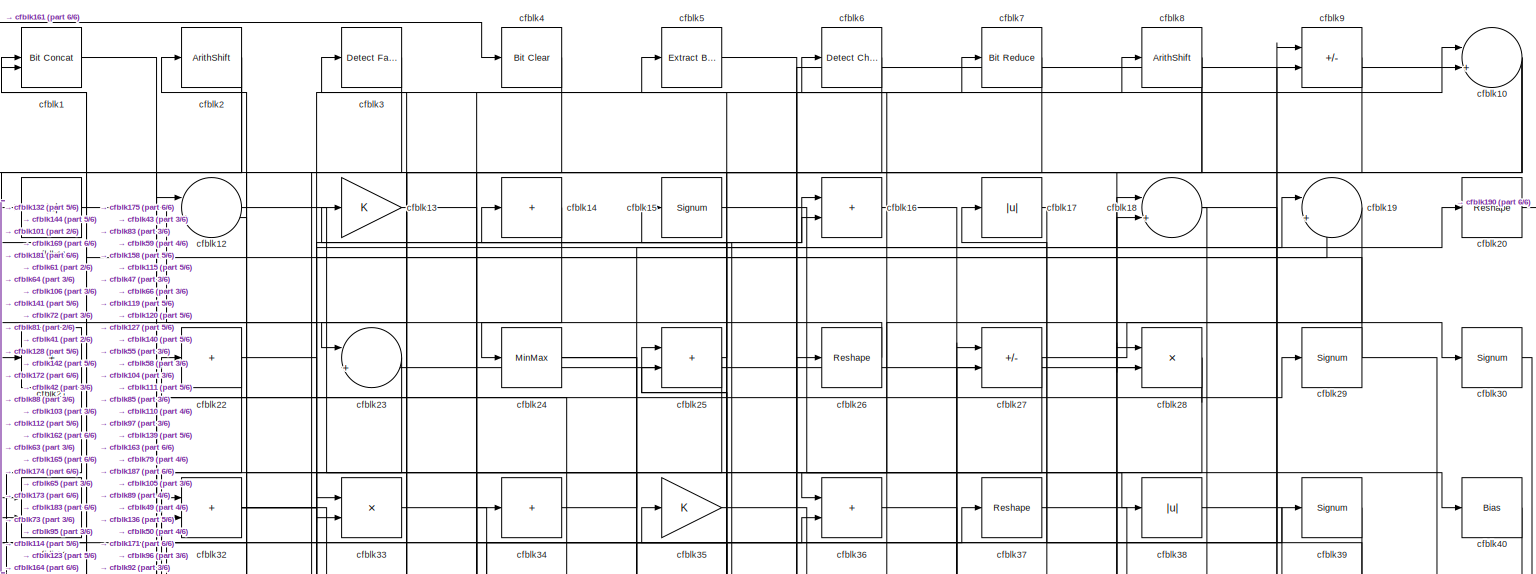
[diagram: root canvas - part 1/6, full width, top band]
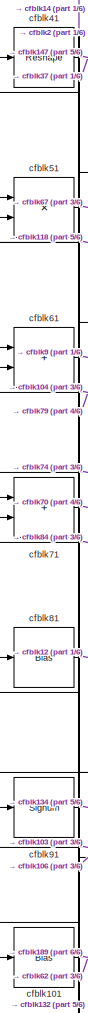
[diagram: root canvas - part 2/6, middle left region]
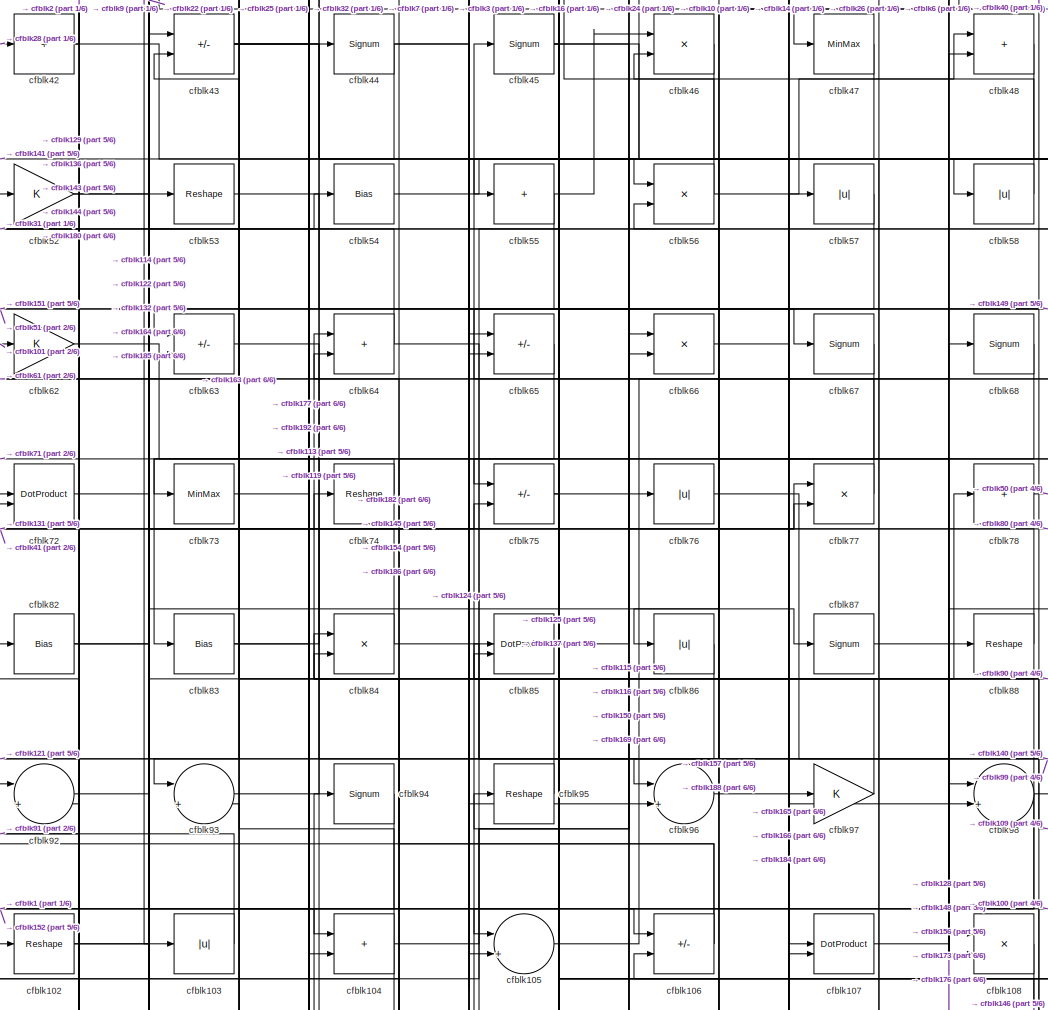
[diagram: root canvas - part 3/6, central region]
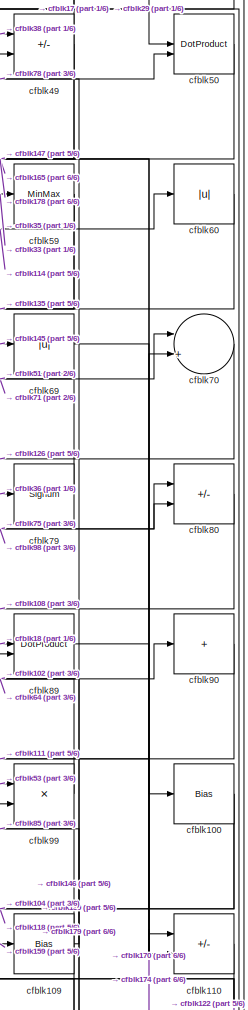
[diagram: root canvas - part 4/6, middle right region]
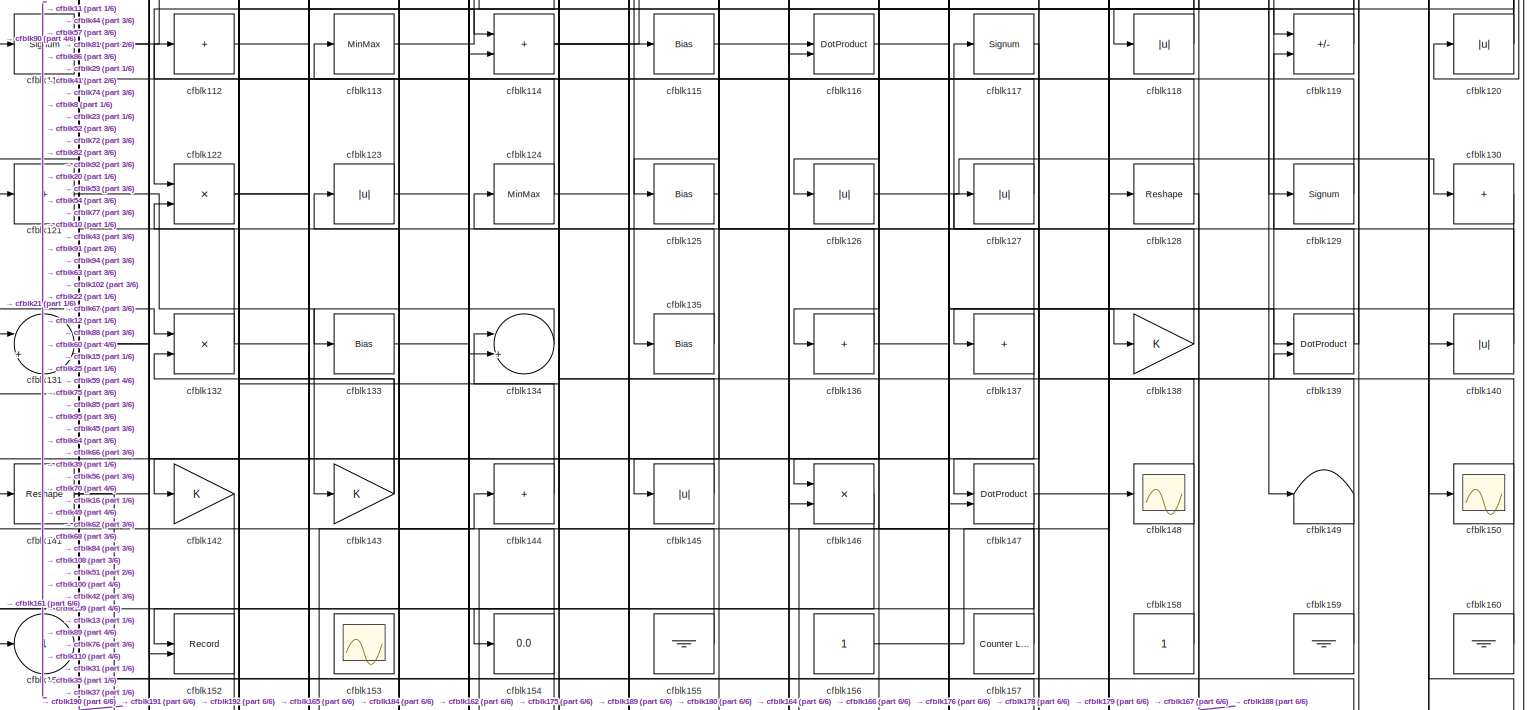
[diagram: root canvas - part 5/6, full width, bottom band]
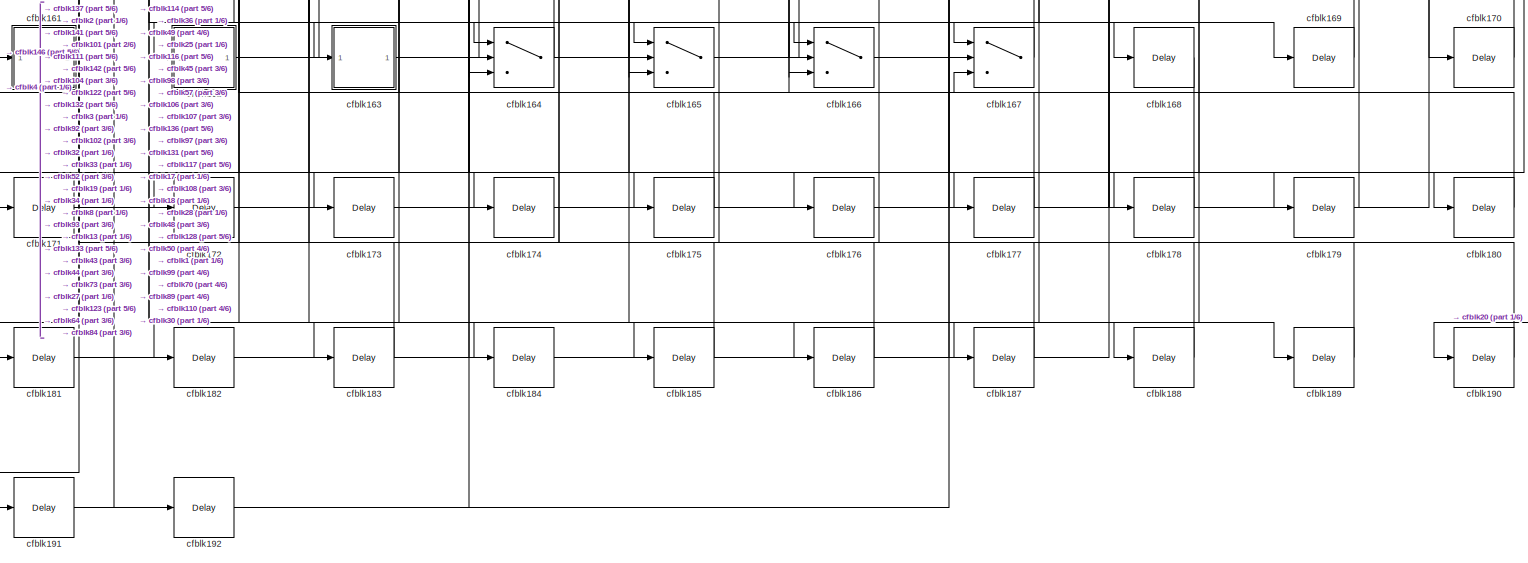
[diagram: root canvas - part 6/6, full width, bottom band]
MODEL slx_dfff746f992a
KIND model
CONFIG AbsTol = auto
CONFIG EnableMultiTasking = off
CONFIG FixedStep = auto
CONFIG MaxStep = auto
CONFIG MinStep = auto
CONFIG RelTol = 1e-3
CONFIG SampleTimeConstraint = Unconstrained
CONFIG SolverName = VariableStepAuto
CONFIG StartTime = 0.0
CONFIG StopTime = 10.0
BLOCK [Reference] cfblk1  REF=hdlsllib/Logic and Bit
Operations/Bit Concat
  SourceBlock = hdlsllib/Logic and Bit\nOperations/Bit Concat
  SourceType = Bit Concat
BLOCK [Sum] cfblk10
  Inputs = |++
BLOCK [Bias] cfblk100
  Bias = 0.0
  SaturateOnIntegerOverflow = off
BLOCK [Bias] cfblk101
  Bias = 0.0
  SaturateOnIntegerOverflow = off
BLOCK [Reshape] cfblk102
BLOCK [Abs] cfblk103
  SaturateOnIntegerOverflow = off
BLOCK [Sum] cfblk104
  IconShape = rectangular
BLOCK [Sum] cfblk105
  Inputs = |++
BLOCK [Sum] cfblk106
  IconShape = rectangular
  Inputs = +-
BLOCK [DotProduct] cfblk107
  OutDataTypeStr = Inherit: Inherit via internal rule
BLOCK [Product] cfblk108
  Inputs = */
  RndMeth = Zero
  SaturateOnIntegerOverflow = on
BLOCK [Bias] cfblk109
  Bias = 0.0
  SaturateOnIntegerOverflow = off
BLOCK [Abs] cfblk11
  SaturateOnIntegerOverflow = off
BLOCK [Sum] cfblk110
  IconShape = rectangular
  Inputs = +-
BLOCK [Signum] cfblk111
BLOCK [Sum] cfblk112
  IconShape = rectangular
  Inputs = +
BLOCK [MinMax] cfblk113
BLOCK [Sum] cfblk114
  IconShape = rectangular
BLOCK [Bias] cfblk115
  Bias = 0.0
  SaturateOnIntegerOverflow = off
BLOCK [DotProduct] cfblk116
  OutDataTypeStr = Inherit: Inherit via internal rule
BLOCK [Signum] cfblk117
BLOCK [Abs] cfblk118
  SaturateOnIntegerOverflow = off
BLOCK [Sum] cfblk119
  IconShape = rectangular
  Inputs = +-
BLOCK [Sum] cfblk12
  Inputs = |++
BLOCK [Abs] cfblk120
  SaturateOnIntegerOverflow = off
BLOCK [Sum] cfblk121
  IconShape = rectangular
  Inputs = +
BLOCK [Product] cfblk122
  Inputs = */
  RndMeth = Zero
  SaturateOnIntegerOverflow = on
BLOCK [Abs] cfblk123
  SaturateOnIntegerOverflow = off
BLOCK [MinMax] cfblk124
BLOCK [Bias] cfblk125
  Bias = 0.0
  SaturateOnIntegerOverflow = off
BLOCK [Abs] cfblk126
  SaturateOnIntegerOverflow = off
BLOCK [Abs] cfblk127
  SaturateOnIntegerOverflow = off
BLOCK [Reshape] cfblk128
BLOCK [Signum] cfblk129
BLOCK [Gain] cfblk13
BLOCK [Sum] cfblk130
  IconShape = rectangular
  Inputs = +
BLOCK [Sum] cfblk131
  Inputs = |++
BLOCK [Product] cfblk132
  Inputs = */
  RndMeth = Zero
  SaturateOnIntegerOverflow = on
BLOCK [Bias] cfblk133
  Bias = 0.0
  SaturateOnIntegerOverflow = off
BLOCK [Sum] cfblk134
  Inputs = |++
BLOCK [Bias] cfblk135
  Bias = 0.0
  SaturateOnIntegerOverflow = off
BLOCK [Sum] cfblk136
  IconShape = rectangular
  Inputs = +
BLOCK [Sum] cfblk137
  IconShape = rectangular
  Inputs = +
BLOCK [Gain] cfblk138
BLOCK [DotProduct] cfblk139
  OutDataTypeStr = Inherit: Inherit via internal rule
BLOCK [Sum] cfblk14
  IconShape = rectangular
  Inputs = +
BLOCK [Abs] cfblk140
  SaturateOnIntegerOverflow = off
BLOCK [Reshape] cfblk141
BLOCK [Gain] cfblk142
BLOCK [Gain] cfblk143
BLOCK [Sum] cfblk144
  IconShape = rectangular
  Inputs = +
BLOCK [Abs] cfblk145
  SaturateOnIntegerOverflow = off
BLOCK [Product] cfblk146
  Inputs = */
  RndMeth = Zero
  SaturateOnIntegerOverflow = on
BLOCK [DotProduct] cfblk147
  OutDataTypeStr = Inherit: Inherit via internal rule
BLOCK [Scope] cfblk148
  Floating = off
  NumInputPorts = 1
  ScopeSpecificationString = Simulink.scopes.TimeScopeBlockCfg('CurrentConfiguration', extmgr.ConfigurationSet(extmgr.Configuration('Core','General UI',true),extmgr.Configuration('Core','Source UI',true),extmgr.Configuration('Sources','WiredSimulink',true,'DataLoggingVariableName','ScopeData2','DataLoggingSaveFormat','Array','DataLoggingLimitDataPoints',true,'DataLoggingDecimation','1'),extmgr.Configuration('Visuals','Time Do...<+868ch>
BLOCK [Terminator] cfblk149
BLOCK [Signum] cfblk15
BLOCK [Scope] cfblk150
  Floating = off
  NumInputPorts = 1
  ScopeSpecificationString = Simulink.scopes.TimeScopeBlockCfg('CurrentConfiguration', extmgr.ConfigurationSet(extmgr.Configuration('Core','General UI',true),extmgr.Configuration('Core','Source UI',true),extmgr.Configuration('Sources','WiredSimulink',true,'DataLoggingVariableName','ScopeData2','DataLoggingSaveFormat','Array','DataLoggingLimitDataPoints',true,'DataLoggingDecimation','1'),extmgr.Configuration('Visuals','Time Do...<+868ch>
BLOCK [Outport] cfblk151
  VectorParamsAs1DForOutWhenUnconnected = off
BLOCK [Record] cfblk152
  CompatibilityTag = XY
  FileSettingsInternal = {"entries":[{"content":{"excelSettings":{"content":{},"type":"Streamout.ExcelSettings"}},"type":"Streamout.FileSettingStorage","uuid":""}],"packageUris":["http:\/\/schema.mathworks.com\/mf0\/streamout_blocks\/R2020a"],"version":"1.0"}
  Layout = [1 1]
  SignalsInternal = {"entries":[{"content":{"signals":[{"content":{"blockPath":[],"dimensions":[1],"domain":"","lineColor":"#a2142f","plots":[1],"port":1,"signalID":2972,"signalName":"XY Graph:1"},"type":"RecordBlkView.Signal","uuid":""},{"content":{"blockPath":[],"dimensions":[1],"domain":"","lineColor":"#139fff","plots":[1],"port":2,"signalID":2975,"signalName":"XY Graph:2"},"type":"RecordBlkView.Signal","uuid":""}...<+146ch>
  VisualizationBindings = {"xyplotplugin":{"info":[{"series":[{"bindingParametersList":[{"parameter":"X-Axis","signalID":2972,"signalName":"XY Graph:1"},{"parameter":"Y-Axis","signalID":2975,"signalName":"XY Graph:2"}],"seriesID":48472}],"subplotID":1}]}}
  st = -1
BLOCK [Scope] cfblk153
  Floating = on
  NumInputPorts = 1
  ScopeSpecificationString = Simulink.scopes.TimeScopeBlockCfg('CurrentConfiguration', extmgr.ConfigurationSet(extmgr.Configuration('Core','General UI',true,'FigureColor',[0.156862745098039 0.156862745098039 0.156862745098039]),extmgr.Configuration('Core','Source UI',true),extmgr.Configuration('Sources','WiredSimulink',true,'DataLoggingVariableName','ScopeData1','DataLoggingSaveFormat','StructureWithTime','DataLoggingLimitDat...<+2713ch>
BLOCK [Display] cfblk154
  Decimation = 1
BLOCK [Ground] cfblk155
BLOCK [Constant] cfblk156
  SampleTime = -1
BLOCK [Reference] cfblk157  REF=hdlsllib/Sources/Counter
Limited
  SourceBlock = hdlsllib/Sources/Counter\nLimited
  SourceType = Counter Limited
BLOCK [Constant] cfblk158
  SampleTime = -1
BLOCK [Ground] cfblk159
BLOCK [Sum] cfblk16
  IconShape = rectangular
BLOCK [Ground] cfblk160
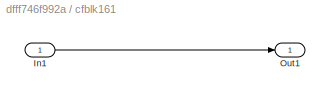
BLOCK [SubSystem] cfblk161
  LibrarySourceBlock = hdlsllib/Ports &\nSubsystems/Subsystem
BLOCK [Inport] cfblk161/In1
BLOCK [Outport] cfblk161/Out1
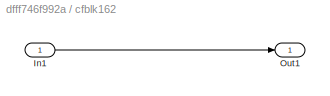
BLOCK [SubSystem] cfblk162
  LibrarySourceBlock = hdlsllib/Ports &\nSubsystems/Subsystem
BLOCK [Inport] cfblk162/In1
BLOCK [Outport] cfblk162/Out1
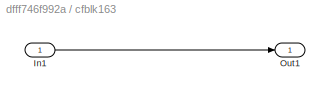
BLOCK [SubSystem] cfblk163
  LibrarySourceBlock = hdlsllib/Ports &\nSubsystems/Subsystem
BLOCK [Inport] cfblk163/In1
BLOCK [Outport] cfblk163/Out1
BLOCK [Switch] cfblk164
  InputSameDT = off
  SaturateOnIntegerOverflow = off
BLOCK [Switch] cfblk165
  InputSameDT = off
  SaturateOnIntegerOverflow = off
BLOCK [Switch] cfblk166
  InputSameDT = off
  SaturateOnIntegerOverflow = off
BLOCK [Switch] cfblk167
  InputSameDT = off
  SaturateOnIntegerOverflow = off
BLOCK [Delay] cfblk168
  InputPortMap = u0
  SampleTime = 1
BLOCK [Delay] cfblk169
  InputPortMap = u0
  SampleTime = 1
BLOCK [Abs] cfblk17
  SaturateOnIntegerOverflow = off
BLOCK [Delay] cfblk170
  InputPortMap = u0
  SampleTime = 1
BLOCK [Delay] cfblk171
  InputPortMap = u0
  SampleTime = 1
BLOCK [Delay] cfblk172
  InputPortMap = u0
  SampleTime = 1
BLOCK [Delay] cfblk173
  InputPortMap = u0
  SampleTime = 1
BLOCK [Delay] cfblk174
  InputPortMap = u0
  SampleTime = 1
BLOCK [Delay] cfblk175
  InputPortMap = u0
  SampleTime = 1
BLOCK [Delay] cfblk176
  InputPortMap = u0
  SampleTime = 1
BLOCK [Delay] cfblk177
  InputPortMap = u0
  SampleTime = 1
BLOCK [Delay] cfblk178
  InputPortMap = u0
  SampleTime = 1
BLOCK [Delay] cfblk179
  InputPortMap = u0
  SampleTime = 1
BLOCK [Sum] cfblk18
  Inputs = |++
BLOCK [Delay] cfblk180
  InputPortMap = u0
  SampleTime = 1
BLOCK [Delay] cfblk181
  InputPortMap = u0
  SampleTime = 1
BLOCK [Delay] cfblk182
  InputPortMap = u0
  SampleTime = 1
BLOCK [Delay] cfblk183
  InputPortMap = u0
  SampleTime = 1
BLOCK [Delay] cfblk184
  InputPortMap = u0
  SampleTime = 1
BLOCK [Delay] cfblk185
  InputPortMap = u0
  SampleTime = 1
BLOCK [Delay] cfblk186
  InputPortMap = u0
  SampleTime = 1
BLOCK [Delay] cfblk187
  InputPortMap = u0
  SampleTime = 1
BLOCK [Delay] cfblk188
  InputPortMap = u0
  SampleTime = 1
BLOCK [Delay] cfblk189
  InputPortMap = u0
  SampleTime = 1
BLOCK [Sum] cfblk19
  Inputs = |++
BLOCK [Delay] cfblk190
  InputPortMap = u0
  SampleTime = 1
BLOCK [Delay] cfblk191
  InputPortMap = u0
  SampleTime = 1
BLOCK [Delay] cfblk192
  InputPortMap = u0
  SampleTime = 1
BLOCK [ArithShift] cfblk2
  BitShiftNumber = 8
  InputPortMap = u0
BLOCK [Reshape] cfblk20
BLOCK [Sum] cfblk21
  IconShape = rectangular
  Inputs = +
BLOCK [Sum] cfblk22
  IconShape = rectangular
  Inputs = +
BLOCK [Sum] cfblk23
  Inputs = |++
BLOCK [MinMax] cfblk24
BLOCK [Sum] cfblk25
  IconShape = rectangular
BLOCK [Reshape] cfblk26
BLOCK [Sum] cfblk27
  IconShape = rectangular
  Inputs = +-
BLOCK [Product] cfblk28
  Inputs = */
  RndMeth = Zero
  SaturateOnIntegerOverflow = on
BLOCK [Signum] cfblk29
BLOCK [Reference] cfblk3  REF=hdlsllib/Logic and Bit
Operations/Detect Fall
Nonpositive
  SourceBlock = hdlsllib/Logic and Bit\nOperations/Detect Fall\nNonpositive
  SourceType = Detect Fall Nonpositive
BLOCK [Signum] cfblk30
BLOCK [Product] cfblk31
  Inputs = */
  RndMeth = Zero
  SaturateOnIntegerOverflow = on
BLOCK [Sum] cfblk32
  IconShape = rectangular
BLOCK [Product] cfblk33
  Inputs = */
  RndMeth = Zero
  SaturateOnIntegerOverflow = on
BLOCK [Sum] cfblk34
  IconShape = rectangular
  Inputs = +
BLOCK [Gain] cfblk35
BLOCK [Sum] cfblk36
  IconShape = rectangular
BLOCK [Reshape] cfblk37
BLOCK [Abs] cfblk38
  SaturateOnIntegerOverflow = off
BLOCK [Signum] cfblk39
BLOCK [Reference] cfblk4  REF=simulink/Logic and Bit
Operations/Bit Clear
  LibrarySourceBlock = hdlsllib/Logic and Bit\nOperations/Bit Clear
  SourceBlock = simulink/Logic and Bit\nOperations/Bit Clear
  SourceType = Bit Clear
BLOCK [Bias] cfblk40
  Bias = 0.0
  SaturateOnIntegerOverflow = off
BLOCK [Reshape] cfblk41
BLOCK [Sum] cfblk42
  IconShape = rectangular
  Inputs = +
BLOCK [Sum] cfblk43
  IconShape = rectangular
  Inputs = +-
BLOCK [Signum] cfblk44
BLOCK [Signum] cfblk45
BLOCK [Product] cfblk46
  Inputs = */
  RndMeth = Zero
  SaturateOnIntegerOverflow = on
BLOCK [MinMax] cfblk47
BLOCK [Sum] cfblk48
  IconShape = rectangular
BLOCK [Sum] cfblk49
  IconShape = rectangular
  Inputs = +-
BLOCK [Reference] cfblk5  REF=simulink/Logic and Bit
Operations/Extract Bits
  LibrarySourceBlock = hdlsllib/Logic and Bit\nOperations/Extract Bits
  SourceBlock = simulink/Logic and Bit\nOperations/Extract Bits
  SourceType = Extract Bits
BLOCK [DotProduct] cfblk50
  OutDataTypeStr = Inherit: Inherit via internal rule
BLOCK [Product] cfblk51
  Inputs = */
  RndMeth = Zero
  SaturateOnIntegerOverflow = on
BLOCK [Gain] cfblk52
BLOCK [Reshape] cfblk53
BLOCK [Bias] cfblk54
  Bias = 0.0
  SaturateOnIntegerOverflow = off
BLOCK [Sum] cfblk55
  IconShape = rectangular
  Inputs = +
BLOCK [Product] cfblk56
  Inputs = */
  RndMeth = Zero
  SaturateOnIntegerOverflow = on
BLOCK [Abs] cfblk57
  SaturateOnIntegerOverflow = off
BLOCK [Abs] cfblk58
  SaturateOnIntegerOverflow = off
BLOCK [MinMax] cfblk59
BLOCK [Reference] cfblk6  REF=simulink/Logic and Bit
Operations/Detect
Change
  LibrarySourceBlock = hdlsllib/Logic and Bit\nOperations/Detect\nChange
  SourceBlock = simulink/Logic and Bit\nOperations/Detect\nChange
  SourceType = Detect Change
BLOCK [Abs] cfblk60
  SaturateOnIntegerOverflow = off
BLOCK [Sum] cfblk61
  IconShape = rectangular
BLOCK [Gain] cfblk62
BLOCK [Sum] cfblk63
  IconShape = rectangular
  Inputs = +-
BLOCK [Sum] cfblk64
  IconShape = rectangular
BLOCK [Sum] cfblk65
  IconShape = rectangular
  Inputs = +-
BLOCK [Product] cfblk66
  Inputs = */
  RndMeth = Zero
  SaturateOnIntegerOverflow = on
BLOCK [Signum] cfblk67
BLOCK [Signum] cfblk68
BLOCK [Abs] cfblk69
  SaturateOnIntegerOverflow = off
BLOCK [Reference] cfblk7  REF=hdlsllib/Logic and Bit
Operations/Bit Reduce
  SourceBlock = hdlsllib/Logic and Bit\nOperations/Bit Reduce
  SourceType = Bit Reduce
BLOCK [Sum] cfblk70
  Inputs = |++
BLOCK [Sum] cfblk71
  IconShape = rectangular
BLOCK [DotProduct] cfblk72
  OutDataTypeStr = Inherit: Inherit via internal rule
BLOCK [MinMax] cfblk73
BLOCK [Reshape] cfblk74
BLOCK [Sum] cfblk75
  IconShape = rectangular
  Inputs = +-
BLOCK [Abs] cfblk76
  SaturateOnIntegerOverflow = off
BLOCK [Product] cfblk77
  Inputs = */
  RndMeth = Zero
  SaturateOnIntegerOverflow = on
BLOCK [Sum] cfblk78
  IconShape = rectangular
  Inputs = +
BLOCK [Signum] cfblk79
BLOCK [ArithShift] cfblk8
  BitShiftNumber = 8
  InputPortMap = u0
BLOCK [Sum] cfblk80
  IconShape = rectangular
  Inputs = +-
BLOCK [Bias] cfblk81
  Bias = 0.0
  SaturateOnIntegerOverflow = off
BLOCK [Bias] cfblk82
  Bias = 0.0
  SaturateOnIntegerOverflow = off
BLOCK [Bias] cfblk83
  Bias = 0.0
  SaturateOnIntegerOverflow = off
BLOCK [Product] cfblk84
  Inputs = */
  RndMeth = Zero
  SaturateOnIntegerOverflow = on
BLOCK [DotProduct] cfblk85
  OutDataTypeStr = Inherit: Inherit via internal rule
BLOCK [Abs] cfblk86
  SaturateOnIntegerOverflow = off
BLOCK [Signum] cfblk87
BLOCK [Reshape] cfblk88
BLOCK [DotProduct] cfblk89
  OutDataTypeStr = Inherit: Inherit via internal rule
BLOCK [Sum] cfblk9
  IconShape = rectangular
  Inputs = +-
BLOCK [Sum] cfblk90
  IconShape = rectangular
  Inputs = +
BLOCK [Signum] cfblk91
BLOCK [Sum] cfblk92
  Inputs = |++
BLOCK [Sum] cfblk93
  Inputs = |++
BLOCK [Signum] cfblk94
BLOCK [Reshape] cfblk95
BLOCK [Sum] cfblk96
  Inputs = |++
BLOCK [Gain] cfblk97
BLOCK [Sum] cfblk98
  Inputs = |++
BLOCK [Product] cfblk99
  Inputs = */
  RndMeth = Zero
  SaturateOnIntegerOverflow = on
NET cfblk100:1 -> cfblk104:2, cfblk118:1
NET cfblk101:1 -> cfblk189:1, cfblk62:1
NET cfblk102:1 -> cfblk185:1, cfblk90:1
LINE cfblk103:1 -> cfblk91:1
NET cfblk104:1 -> cfblk10:2, cfblk182:1, cfblk61:2
LINE cfblk105:1 -> cfblk18:2
NET cfblk106:1 -> cfblk71:2, cfblk84:1
LINE cfblk107:1 -> cfblk98:1
LINE cfblk108:1 -> cfblk146:1
NET cfblk109:1 -> cfblk146:2, cfblk49:2, cfblk85:2
NET cfblk10:1 -> cfblk114:2, cfblk28:2, cfblk55:1
LINE cfblk110:1 -> cfblk122:1
NET cfblk111:1 -> cfblk184:1, cfblk8:1
LINE cfblk112:1 -> cfblk20:1
LINE cfblk113:1 -> cfblk94:1
NET cfblk114:1 -> cfblk166:1, cfblk176:1, cfblk60:1
LINE cfblk115:1 -> cfblk66:1
LINE cfblk116:1 -> cfblk138:1
LINE cfblk117:1 -> cfblk167:1
LINE cfblk118:1 -> cfblk51:1
LINE cfblk119:1 -> cfblk13:1
LINE cfblk11:1 -> cfblk33:2
NET cfblk120:1 -> cfblk31:1, cfblk35:1
LINE cfblk121:1 -> cfblk143:1
NET cfblk122:1 -> cfblk53:1, cfblk77:2
NET cfblk123:1 -> cfblk11:1, cfblk39:1
NET cfblk124:1 -> cfblk113:1, cfblk88:1
LINE cfblk125:1 -> cfblk95:1
LINE cfblk126:1 -> cfblk130:1
LINE cfblk127:1 -> cfblk15:1
NET cfblk128:1 -> cfblk12:2, cfblk188:1
LINE cfblk129:1 -> cfblk72:1
LINE cfblk12:1 -> cfblk115:1
LINE cfblk130:1 -> cfblk137:1
NET cfblk131:1 -> cfblk165:1, cfblk74:1
NET cfblk132:1 -> cfblk54:1, cfblk81:1
LINE cfblk133:1 -> cfblk180:1
LINE cfblk134:1 -> cfblk133:1
LINE cfblk135:1 -> cfblk124:1
NET cfblk136:1 -> cfblk179:1, cfblk82:1
NET cfblk137:1 -> cfblk191:1, cfblk85:1
LINE cfblk138:1 -> cfblk117:1
NET cfblk139:1 -> cfblk119:2, cfblk89:2
LINE cfblk13:1 -> cfblk175:1
LINE cfblk140:1 -> cfblk25:1
NET cfblk141:1 -> cfblk192:1, cfblk29:1
LINE cfblk142:1 -> cfblk162:1
NET cfblk143:1 -> cfblk112:1, cfblk92:1
LINE cfblk144:1 -> cfblk52:1
LINE cfblk145:1 -> cfblk102:1
LINE cfblk146:1 -> cfblk161:1
NET cfblk147:1 -> cfblk139:2, cfblk152:1
LINE cfblk14:1 -> cfblk101:1
LINE cfblk155:1 -> cfblk134:1
LINE cfblk156:1 -> cfblk68:1
LINE cfblk157:1 -> cfblk56:2
LINE cfblk158:1 -> cfblk22:1
LINE cfblk159:1 -> cfblk109:1
LINE cfblk15:1 -> cfblk40:1
LINE cfblk160:1 -> cfblk127:1
LINE cfblk161/In1:1 -> cfblk161/Out1:1
LINE cfblk161:1 -> cfblk4:1
LINE cfblk162/In1:1 -> cfblk162/Out1:1
NET cfblk162:1 -> cfblk19:2, cfblk34:1
LINE cfblk163/In1:1 -> cfblk163/Out1:1
LINE cfblk163:1 -> cfblk27:2
NET cfblk164:1 -> cfblk123:1, cfblk186:1, cfblk36:2
NET cfblk165:1 -> cfblk168:1, cfblk57:1
LINE cfblk166:1 -> cfblk97:1
LINE cfblk167:1 -> cfblk131:2
LINE cfblk168:1 -> cfblk167:3
LINE cfblk169:1 -> cfblk1:2
LINE cfblk16:1 -> cfblk139:1
LINE cfblk170:1 -> cfblk110:1
LINE cfblk171:1 -> cfblk27:1
LINE cfblk172:1 -> cfblk18:1
LINE cfblk173:1 -> cfblk108:1
LINE cfblk174:1 -> cfblk70:2
LINE cfblk175:1 -> cfblk132:2
LINE cfblk176:1 -> cfblk48:2
LINE cfblk177:1 -> cfblk93:2
LINE cfblk178:1 -> cfblk116:1
LINE cfblk179:1 -> cfblk99:2
LINE cfblk17:1 -> cfblk187:1
LINE cfblk180:1 -> cfblk92:2
LINE cfblk181:1 -> cfblk28:1
LINE cfblk182:1 -> cfblk164:2
LINE cfblk183:1 -> cfblk33:1
LINE cfblk184:1 -> cfblk107:2
LINE cfblk185:1 -> cfblk64:2
LINE cfblk186:1 -> cfblk84:2
LINE cfblk187:1 -> cfblk25:2
LINE cfblk188:1 -> cfblk106:2
LINE cfblk189:1 -> cfblk122:2
NET cfblk18:1 -> cfblk58:1, cfblk89:1
LINE cfblk190:1 -> cfblk131:1
LINE cfblk191:1 -> cfblk167:2
LINE cfblk192:1 -> cfblk44:1
LINE cfblk19:1 -> cfblk36:1
LINE cfblk1:1 -> cfblk106:1
LINE cfblk20:1 -> cfblk190:1
LINE cfblk21:1 -> cfblk132:1
NET cfblk22:1 -> cfblk104:1, cfblk72:2
LINE cfblk23:1 -> cfblk142:1
NET cfblk24:1 -> cfblk47:1, cfblk66:2
NET cfblk25:1 -> cfblk5:1, cfblk63:2
LINE cfblk26:1 -> cfblk24:1
NET cfblk27:1 -> cfblk164:3, cfblk30:1
NET cfblk28:1 -> cfblk23:2, cfblk42:1
NET cfblk29:1 -> cfblk1:1, cfblk50:1
NET cfblk2:1 -> cfblk181:1, cfblk32:2, cfblk61:1
LINE cfblk30:1 -> cfblk171:1
LINE cfblk31:1 -> cfblk144:1
NET cfblk32:1 -> cfblk165:3, cfblk16:1, cfblk174:1, cfblk65:1
LINE cfblk33:1 -> cfblk59:1
LINE cfblk34:1 -> cfblk19:1
LINE cfblk35:1 -> cfblk110:2
LINE cfblk36:1 -> cfblk79:1
LINE cfblk37:1 -> cfblk120:1
LINE cfblk38:1 -> cfblk49:1
LINE cfblk39:1 -> cfblk136:1
LINE cfblk3:1 -> cfblk172:1
LINE cfblk40:1 -> cfblk96:1
NET cfblk41:1 -> cfblk147:2, cfblk37:1
NET cfblk42:1 -> cfblk129:1, cfblk2:1
NET cfblk43:1 -> cfblk149:1, cfblk166:2, cfblk16:2, cfblk76:1
NET cfblk44:1 -> cfblk105:2, cfblk141:1, cfblk96:2
NET cfblk45:1 -> cfblk105:1, cfblk150:1, cfblk169:1
LINE cfblk46:1 -> cfblk65:2
LINE cfblk47:1 -> cfblk86:1
LINE cfblk48:1 -> cfblk93:1
NET cfblk49:1 -> cfblk147:1, cfblk165:2, cfblk17:1
LINE cfblk4:1 -> cfblk173:1
LINE cfblk50:1 -> cfblk178:1
LINE cfblk51:1 -> cfblk67:1
NET cfblk52:1 -> cfblk164:1, cfblk43:1
LINE cfblk53:1 -> cfblk99:1
LINE cfblk54:1 -> cfblk56:1
NET cfblk55:1 -> cfblk46:1, cfblk63:1
NET cfblk56:1 -> cfblk46:2, cfblk48:1
LINE cfblk57:1 -> cfblk151:1
LINE cfblk58:1 -> cfblk14:1
NET cfblk59:1 -> cfblk145:1, cfblk69:1
LINE cfblk5:1 -> cfblk38:1
LINE cfblk60:1 -> cfblk135:1
LINE cfblk61:1 -> cfblk9:2
LINE cfblk62:1 -> cfblk128:1
LINE cfblk63:1 -> cfblk119:1
NET cfblk64:1 -> cfblk116:2, cfblk31:2
LINE cfblk65:1 -> cfblk75:1
LINE cfblk66:1 -> cfblk107:1
LINE cfblk67:1 -> cfblk154:1
LINE cfblk68:1 -> cfblk83:1
LINE cfblk69:1 -> cfblk100:1
LINE cfblk6:1 -> cfblk73:1
LINE cfblk70:1 -> cfblk126:1
LINE cfblk71:1 -> cfblk70:1
LINE cfblk72:1 -> cfblk75:2
LINE cfblk73:1 -> cfblk177:1
LINE cfblk74:1 -> cfblk71:1
NET cfblk75:1 -> cfblk125:1, cfblk80:2
LINE cfblk76:1 -> cfblk140:1
LINE cfblk77:1 -> cfblk45:1
LINE cfblk78:1 -> cfblk50:2
LINE cfblk79:1 -> cfblk51:2
LINE cfblk7:1 -> cfblk21:1
LINE cfblk80:1 -> cfblk108:2
LINE cfblk81:1 -> cfblk12:1
NET cfblk82:1 -> cfblk114:1, cfblk87:1
NET cfblk83:1 -> cfblk10:1, cfblk9:1
NET cfblk84:1 -> cfblk148:1, cfblk41:1
LINE cfblk85:1 -> cfblk26:1
LINE cfblk86:1 -> cfblk121:1
LINE cfblk87:1 -> cfblk78:1
LINE cfblk88:1 -> cfblk32:1
LINE cfblk89:1 -> cfblk170:1
NET cfblk8:1 -> cfblk183:1, cfblk23:1
LINE cfblk90:1 -> cfblk111:1
LINE cfblk91:1 -> cfblk134:2
LINE cfblk92:1 -> cfblk7:1
LINE cfblk93:1 -> cfblk77:1
LINE cfblk94:1 -> cfblk152:2
LINE cfblk95:1 -> cfblk3:1
LINE cfblk96:1 -> cfblk98:2
LINE cfblk97:1 -> cfblk6:1
NET cfblk98:1 -> cfblk163:1, cfblk166:3, cfblk43:2, cfblk80:1
LINE cfblk99:1 -> cfblk64:1
LINE cfblk9:1 -> cfblk103:1
note: NET lines group one-source signal fan-out (src -> all destinations, sorted); 1:1 wires keep LINE
